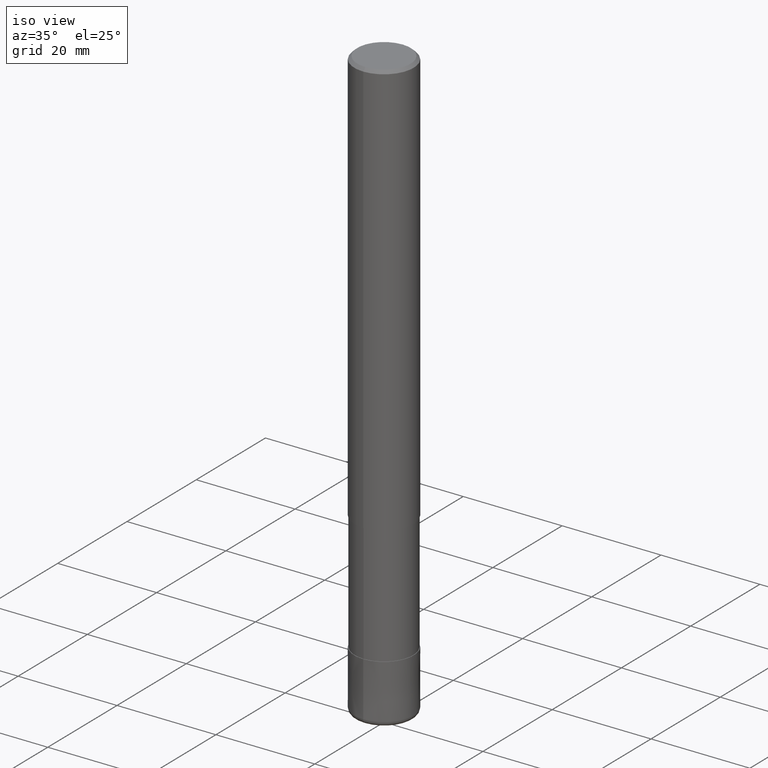
[diagram: clean part render]
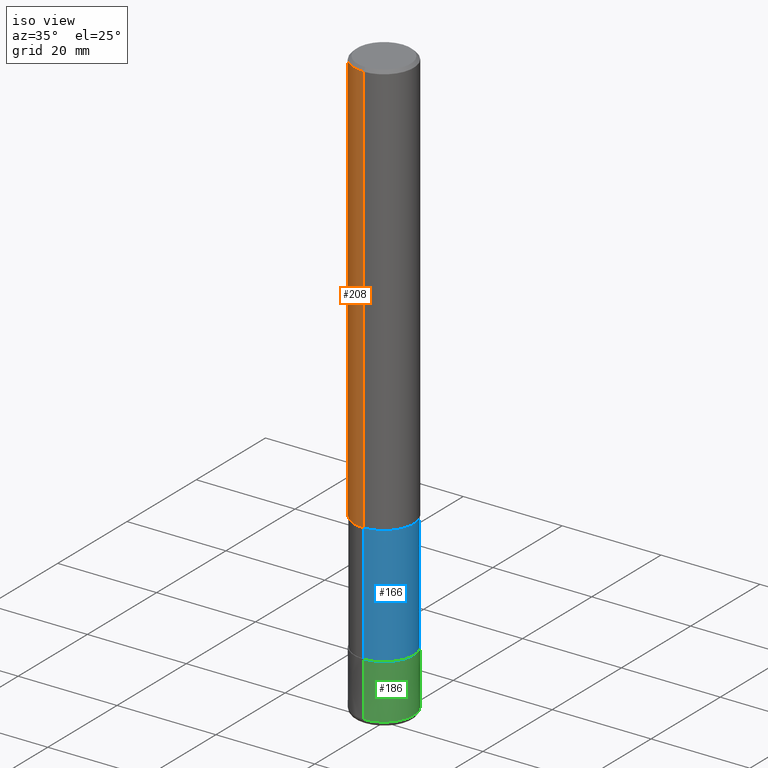
[diagram: same view with three faces highlighted in distinct colors, each labeled with its STEP entity id]
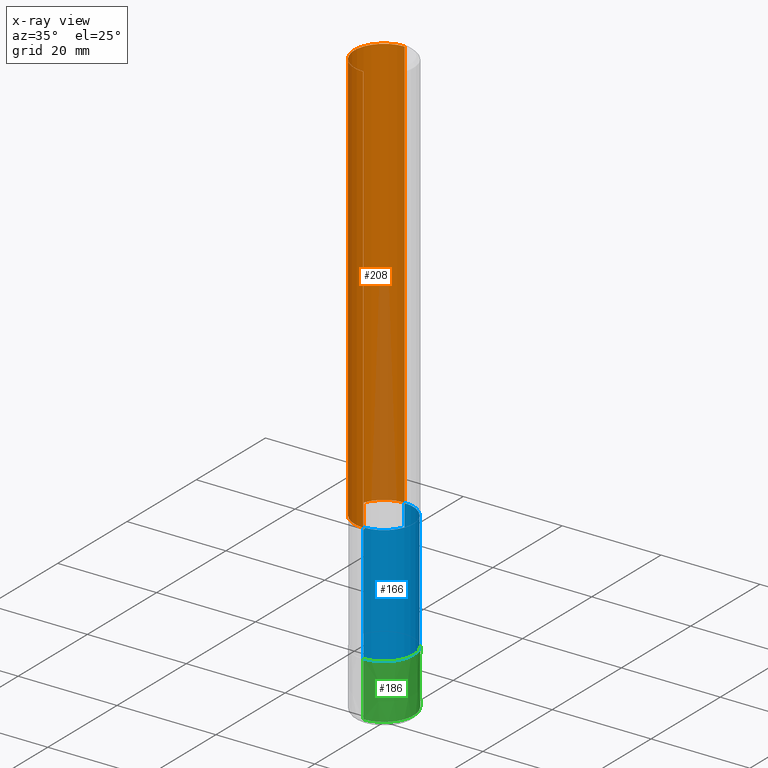
[diagram: x-ray of the same camera — body ghosted, the three highlighted faces saturated]
A machine part, iso view with three faces highlighted in distinct colors.
The next image is the same camera in x-ray (body ghosted, the three faces saturated) — at least one of them is partly hidden behind the body in this view.
Their STEP definitions:

[orange] entity #208 — the highlighted cylindrical surface (edge-blend (fillet) strip) has radius 6 mm, axis along (-0, -0, 1).
#94=EDGE_CURVE('',#120,#98,#231,.T.);
#98=VERTEX_POINT('',#235);
#116=VERTEX_POINT('',#255);
#120=VERTEX_POINT('',#261);
#142=VERTEX_POINT('',#287);
#154=EDGE_CURVE('',#116,#120,#300,.T.);
#176=EDGE_CURVE('',#116,#142,#325,.T.);
#180=EDGE_CURVE('',#98,#142,#329,.T.);
#208=ADVANCED_FACE('',(#360),#361,.T.);
#231=CIRCLE('',#378,6.0);
#235=CARTESIAN_POINT('',(0.0,6.0,-0.599999999999994));
#255=CARTESIAN_POINT('',(7.34763812293426E-016,-6.0,-84.0));
#261=CARTESIAN_POINT('',(7.34763812293426E-016,-6.0,-0.599999999999994));
#287=CARTESIAN_POINT('',(0.0,6.0,-84.0));
#300=LINE('',#460,#461);
#325=CIRCLE('',#492,6.0);
#329=LINE('',#497,#498);
#360=FACE_OUTER_BOUND('',#537,.T.);
#361=CYLINDRICAL_SURFACE('',#538,6.0);
#378=AXIS2_PLACEMENT_3D('',#543,#544,#545);
#460=CARTESIAN_POINT('',(7.34763812293426E-016,-6.0,-42.3));
#461=VECTOR('',#629,1.0);
#492=AXIS2_PLACEMENT_3D('',#663,#664,#665);
#497=CARTESIAN_POINT('',(-7.34763812293426E-016,6.0,-42.3));
#498=VECTOR('',#666,1.0);
#537=EDGE_LOOP('',(#709,#710,#711,#712));
#538=AXIS2_PLACEMENT_3D('',#713,#714,#715);
#543=CARTESIAN_POINT('',(0.0,0.0,-0.599999999999994));
#544=DIRECTION('',(0.0,0.0,-1.0));
#545=DIRECTION('',(0.0,1.0,0.0));
#629=DIRECTION('',(-0.0,-0.0,1.0));
#663=CARTESIAN_POINT('',(0.0,0.0,-84.0));
#664=DIRECTION('',(0.0,0.0,-1.0));
#665=DIRECTION('',(0.0,1.0,0.0));
#666=DIRECTION('',(0.0,0.0,-1.0));
#709=ORIENTED_EDGE('',*,*,#180,.T.);
#710=ORIENTED_EDGE('',*,*,#176,.F.);
#711=ORIENTED_EDGE('',*,*,#154,.T.);
#712=ORIENTED_EDGE('',*,*,#94,.T.);
#713=CARTESIAN_POINT('',(0.0,0.0,-42.3));
#714=DIRECTION('',(-0.0,-0.0,1.0));
#715=DIRECTION('',(0.0,1.0,0.0));

[blue] entity #166 — the highlighted cylindrical surface (edge-blend (fillet) strip) has radius 5.91 mm, axis along (-0, -0, 1).
#112=EDGE_CURVE('',#206,#152,#251,.T.);
#148=EDGE_CURVE('',#190,#178,#294,.T.);
#152=VERTEX_POINT('',#298);
#156=EDGE_CURVE('',#190,#206,#302,.T.);
#166=ADVANCED_FACE('',(#313),#314,.T.);
#174=EDGE_CURVE('',#152,#178,#323,.T.);
#178=VERTEX_POINT('',#327);
#190=VERTEX_POINT('',#341);
#206=VERTEX_POINT('',#358);
#251=CIRCLE('',#402,5.90995);
#294=CIRCLE('',#453,5.90995);
#298=CARTESIAN_POINT('',(7.23736232077256E-016,-5.90995,-108.0));
#302=LINE('',#464,#465);
#313=FACE_OUTER_BOUND('',#478,.T.);
#314=CYLINDRICAL_SURFACE('',#479,5.90995);
#323=LINE('',#488,#489);
#327=CARTESIAN_POINT('',(7.23736232077256E-016,-5.90995,-84.0));
#341=CARTESIAN_POINT('',(0.0,5.90995,-84.0));
#358=CARTESIAN_POINT('',(0.0,5.90995,-108.0));
#402=AXIS2_PLACEMENT_3D('',#568,#569,#570);
#453=AXIS2_PLACEMENT_3D('',#626,#627,#628);
#464=CARTESIAN_POINT('',(-7.23736232077256E-016,5.90995,-96.0));
#465=VECTOR('',#630,1.0);
#478=EDGE_LOOP('',(#646,#647,#648,#649));
#479=AXIS2_PLACEMENT_3D('',#650,#651,#652);
#488=CARTESIAN_POINT('',(7.23736232077256E-016,-5.90995,-96.0));
#489=VECTOR('',#662,1.0);
#568=CARTESIAN_POINT('',(0.0,0.0,-108.0));
#569=DIRECTION('',(0.0,0.0,-1.0));
#570=DIRECTION('',(0.0,1.0,0.0));
#626=CARTESIAN_POINT('',(0.0,0.0,-84.0));
#627=DIRECTION('',(0.0,0.0,-1.0));
#628=DIRECTION('',(0.0,1.0,0.0));
#630=DIRECTION('',(0.0,0.0,-1.0));
#646=ORIENTED_EDGE('',*,*,#156,.F.);
#647=ORIENTED_EDGE('',*,*,#148,.T.);
#648=ORIENTED_EDGE('',*,*,#174,.F.);
#649=ORIENTED_EDGE('',*,*,#112,.F.);
#650=CARTESIAN_POINT('',(0.0,0.0,-96.0));
#651=DIRECTION('',(-0.0,-0.0,1.0));
#652=DIRECTION('',(0.0,1.0,0.0));
#662=DIRECTION('',(-0.0,-0.0,1.0));

[green] entity #186 — the highlighted conical surface has half-angle 0.001 deg.
#114=EDGE_CURVE('',#150,#158,#253,.T.);
#122=VERTEX_POINT('',#263);
#134=VERTEX_POINT('',#278);
#136=EDGE_CURVE('',#150,#122,#280,.T.);
#150=VERTEX_POINT('',#296);
#158=VERTEX_POINT('',#304);
#186=ADVANCED_FACE('',(#336),#337,.T.);
#196=EDGE_CURVE('',#122,#134,#347,.T.);
#202=EDGE_CURVE('',#134,#158,#354,.T.);
#253=CIRCLE('',#405,5.9999);
#263=CARTESIAN_POINT('',(0.0,6.0,-119.0));
#278=CARTESIAN_POINT('',(7.34763812293426E-016,-6.0,-119.0));
#280=LINE('',#434,#435);
#296=CARTESIAN_POINT('',(0.0,5.9999,-108.0));
#304=CARTESIAN_POINT('',(7.34751566229888E-016,-5.9999,-108.0));
#336=FACE_OUTER_BOUND('',#506,.T.);
#337=CONICAL_SURFACE('',#507,5.99995,9.09090909063747E-006);
#347=CIRCLE('',#521,6.0);
#354=LINE('',#530,#531);
#405=AXIS2_PLACEMENT_3D('',#571,#572,#573);
#434=CARTESIAN_POINT('',(-7.34757689261658E-016,5.99995,-113.5));
#435=VECTOR('',#609,1.0);
#506=EDGE_LOOP('',(#679,#680,#681,#682));
#507=AXIS2_PLACEMENT_3D('',#683,#684,#685);
#521=AXIS2_PLACEMENT_3D('',#695,#696,#697);
#530=CARTESIAN_POINT('',(7.34757689261657E-016,-5.99995,-113.5));
#531=VECTOR('',#707,1.0);
#571=CARTESIAN_POINT('',(0.0,0.0,-108.0));
#572=DIRECTION('',(0.0,0.0,-1.0));
#573=DIRECTION('',(0.0,1.0,0.0));
#609=DIRECTION('',(-1.11327850342629E-021,9.09090909051225E-006,-0.999999999958678));
#679=ORIENTED_EDGE('',*,*,#136,.F.);
#680=ORIENTED_EDGE('',*,*,#114,.T.);
#681=ORIENTED_EDGE('',*,*,#202,.F.);
#682=ORIENTED_EDGE('',*,*,#196,.F.);
#683=CARTESIAN_POINT('',(0.0,0.0,-113.5));
#684=DIRECTION('',(0.0,-0.0,-1.0));
#685=DIRECTION('',(0.0,1.0,0.0));
#695=CARTESIAN_POINT('',(0.0,0.0,-119.0));
#696=DIRECTION('',(0.0,0.0,-1.0));
#697=DIRECTION('',(0.0,1.0,0.0));
#707=DIRECTION('',(-1.11327850342629E-021,9.09090909051225E-006,0.999999999958678));